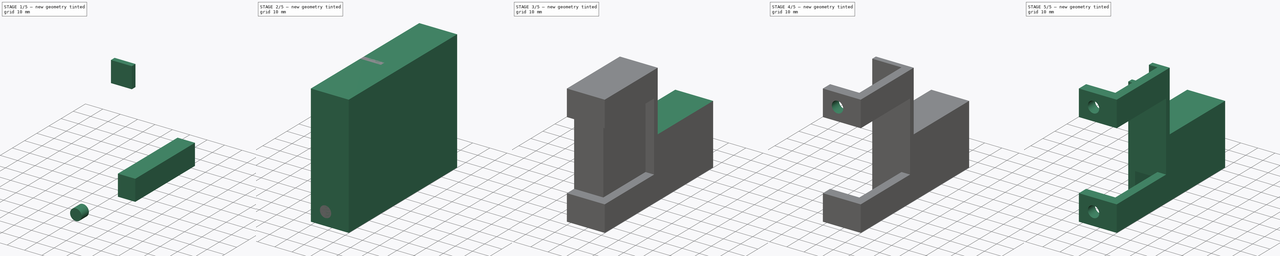
[diagram: build sequence overview — one tinted view per stage of 5, left to right]
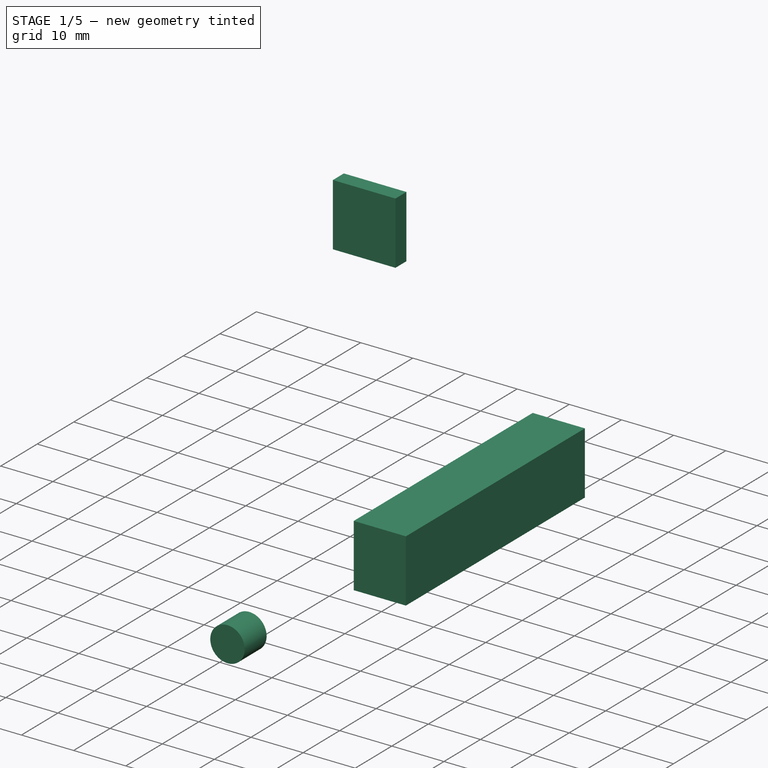
[diagram: stage 1 of 5 — iso view after this stage's code; geometry added in this stage tinted green]
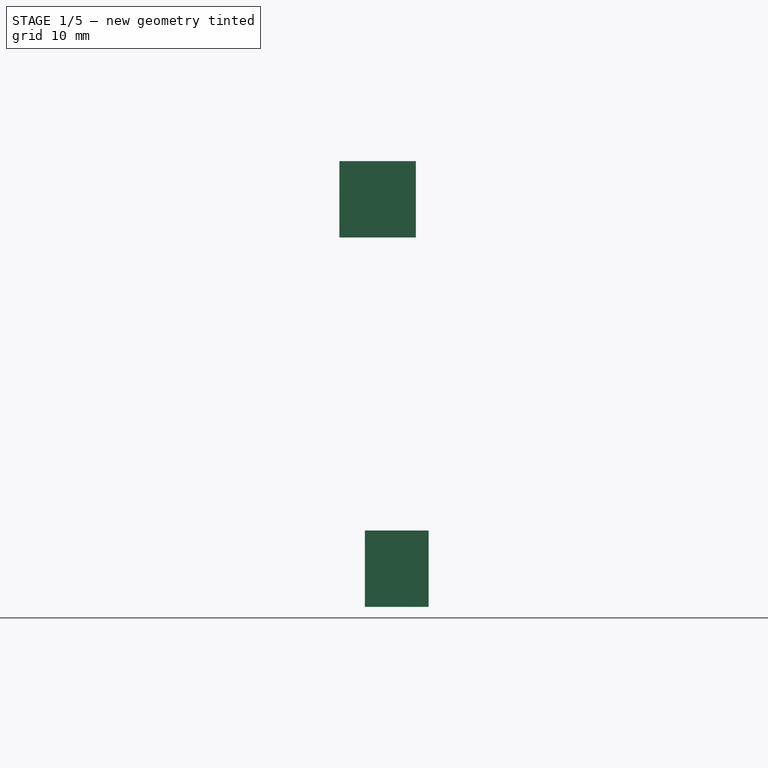
[diagram: stage 1 of 5 — front view after this stage's code; geometry added in this stage tinted green]
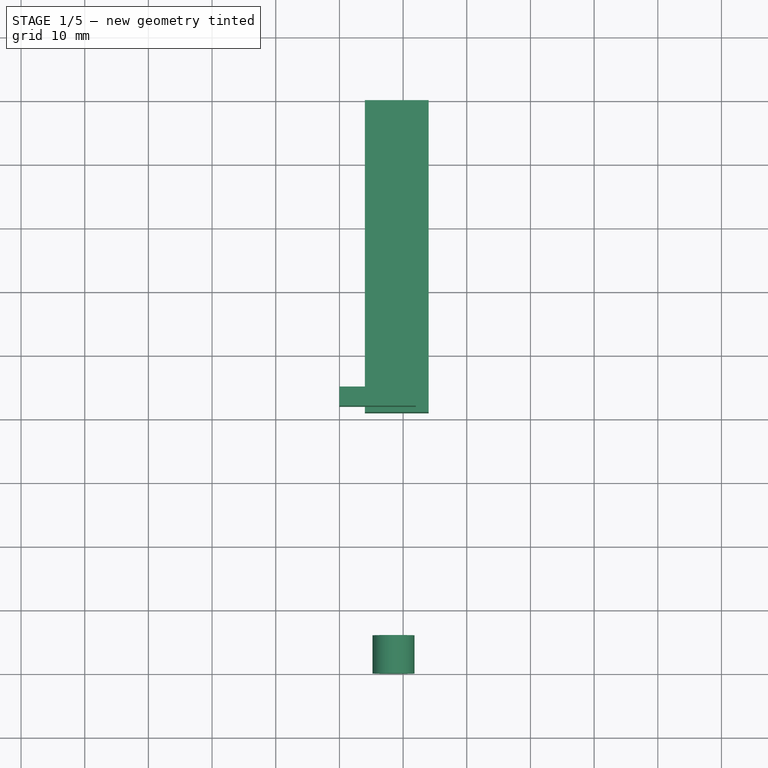
[diagram: stage 1 of 5 — top view after this stage's code; geometry added in this stage tinted green]
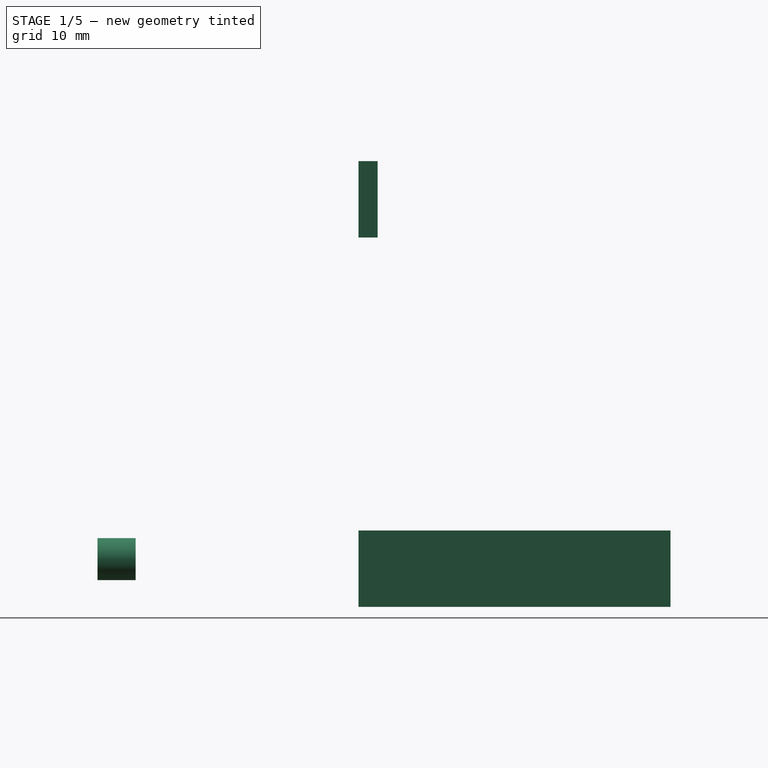
[diagram: stage 1 of 5 — right view after this stage's code; geometry added in this stage tinted green]
FCSTD DOCUMENT  (FreeCAD 0.17R13541 (Git))
Label: LimitSwitchHolder_x-plus
License: All rights reserved
LicenseURL: http://en.wikipedia.org/wiki/All_rights_reserved
objects: Sketcher::SketchObject×9, PartDesign::Pad×9, PartDesign::Body×9, PartDesign::Boolean×8, PartDesign::ShapeBinder×6
note: 50 computed .brp shape members not serialized (recipe doc carries the construction recipe); baked Part::Feature solids carry a one-line shape summary decoded from their .brp

FEATURE [PartDesign::Body] Body006
  Group = -> [Sketch007,Pad005]
  Origin = -> Origin006
  Tip = -> Pad005
FEATURE [Sketcher::SketchObject] Sketch008
  MapMode = 5
  Placement = pos=(0,0,0) rot=(-0.57735,-0.57735,0.57735;4.18879rad)
  sketch-geometry (1):
    g0: Circle CenterX=-7.5 CenterY=8.5 CenterZ=0 NormalX=0 NormalY=0 NormalZ=1 AngleXU=0 Radius=3.3
  constraints (3):
    c: DistanceY(g-1,g0) = 8.5
    c: DistanceX(g0,g-1) = 7.5
    c: Radius(g0) = 3.3
FEATURE [PartDesign::Pad] Pad006
  Length = 6
  Length2 = 100
  Placement = pos=(0,0,0) rot=(-0.57735,-0.57735,0.57735;4.18879rad)
  Profile = -> Sketch008
  Reversed = true
  Type = 0
FEATURE [PartDesign::ShapeBinder] CopyBoolean005
FEATURE [Sketcher::SketchObject] Sketch009
  MapMode = 5
  Placement = pos=(0,41,0) rot=(1,0,0;1.5708rad)
  Support = -> [CopyBoolean005]
  sketch-geometry (4):
    g0: LineSegment StartX=0 StartY=70 StartZ=0 EndX=12 EndY=70 EndZ=0
    g1: LineSegment StartX=12 StartY=70 StartZ=0 EndX=12 EndY=58 EndZ=0
    g2: LineSegment StartX=12 StartY=58 StartZ=0 EndX=0 EndY=58 EndZ=0
    g3: LineSegment StartX=0 StartY=58 StartZ=0 EndX=0 EndY=70 EndZ=0
  constraints (12):
    c: Coincident(g0,g1)
    c: Coincident(g1,g2)
    c: Coincident(g2,g3)
    c: Coincident(g3,g0)
    c: Horizontal(g0)
    c: Horizontal(g2)
    c: Vertical(g1)
    c: Vertical(g3)
    c: PointOnObject(g0,g-2)
    c: DistanceX(g2,g2) = 12
    c: DistanceY(g1,g1) = 12
    c: DistanceY(g-1,g0) = 70
FEATURE [PartDesign::Pad] Pad007
  Length = 3
  Length2 = 100
  Profile = -> Sketch009
  Reversed = true
  Type = 0
FEATURE [PartDesign::ShapeBinder] CopyBoolean006
FEATURE [Sketcher::SketchObject] Sketch010
  MapMode = 5
  Placement = pos=(0,0,0) rot=(1,0,0;3.14159rad)
  Support = -> [CopyBoolean006]
  sketch-geometry (4):
    g0: LineSegment StartX=4 StartY=-41 StartZ=0 EndX=14 EndY=-41 EndZ=0
    g1: LineSegment StartX=14 StartY=-41 StartZ=0 EndX=14 EndY=-90 EndZ=0
    g2: LineSegment StartX=14 StartY=-90 StartZ=0 EndX=4 EndY=-90 EndZ=0
    g3: LineSegment StartX=4 StartY=-90 StartZ=0 EndX=4 EndY=-41 EndZ=0
  constraints (12):
    c: Coincident(g0,g1)
    c: Coincident(g1,g2)
    c: Coincident(g2,g3)
    c: Coincident(g3,g0)
    c: Horizontal(g0)
    c: Horizontal(g2)
    c: Vertical(g1)
    c: Vertical(g3)
    c: DistanceX(g0,g0) = 10
    c: DistanceY(g3,g3) = 49
    c: DistanceY(g0,g-1) = 41
    c: DistanceX(g-1,g0) = 4
FEATURE [PartDesign::Pad] Pad008
  Length = 12
  Length2 = 100
  Profile = -> Sketch010
  Reversed = true
  Type = 0
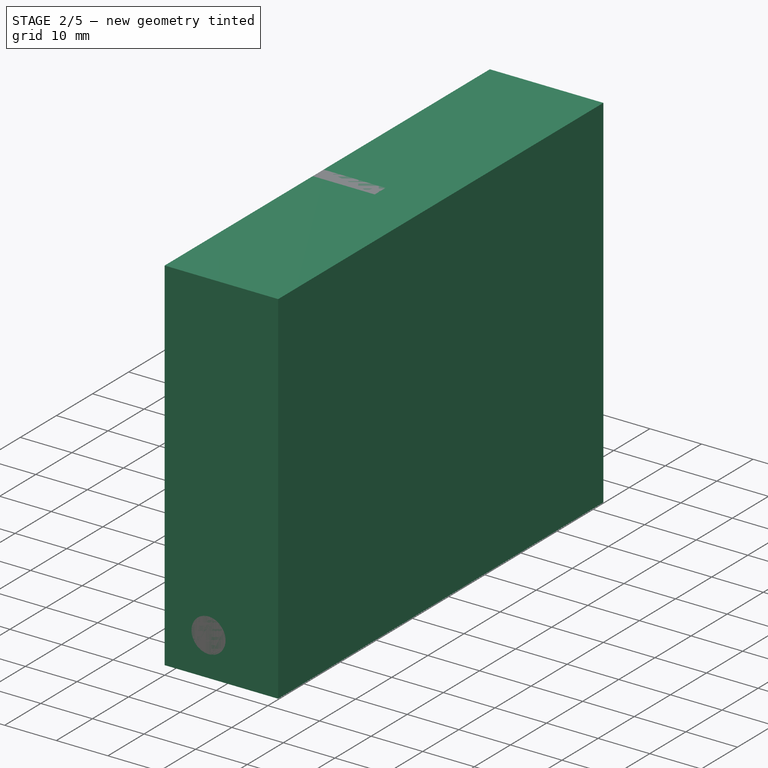
[diagram: stage 2 of 5 — iso view after this stage's code; geometry added in this stage tinted green]
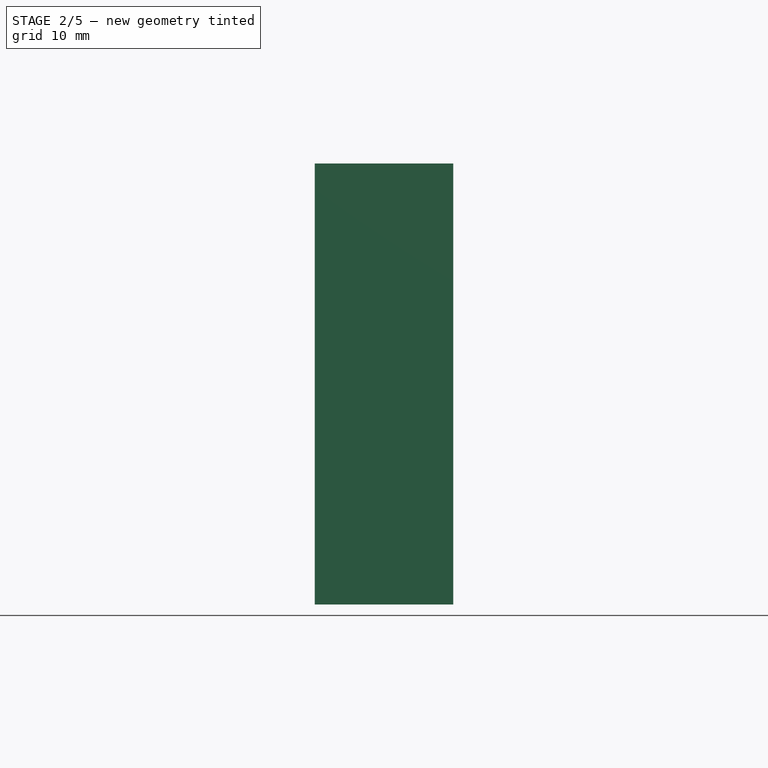
[diagram: stage 2 of 5 — front view after this stage's code; geometry added in this stage tinted green]
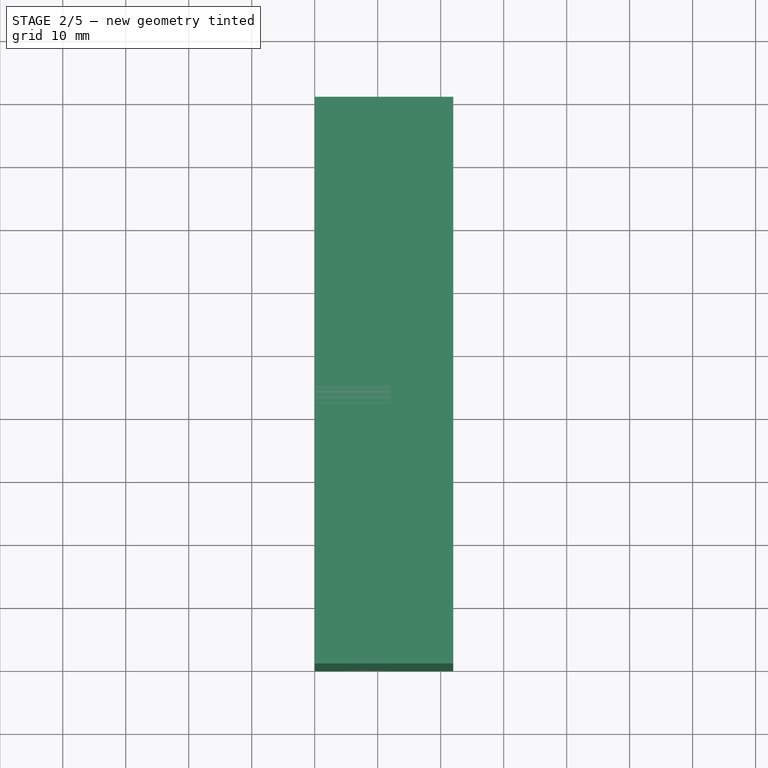
[diagram: stage 2 of 5 — top view after this stage's code; geometry added in this stage tinted green]
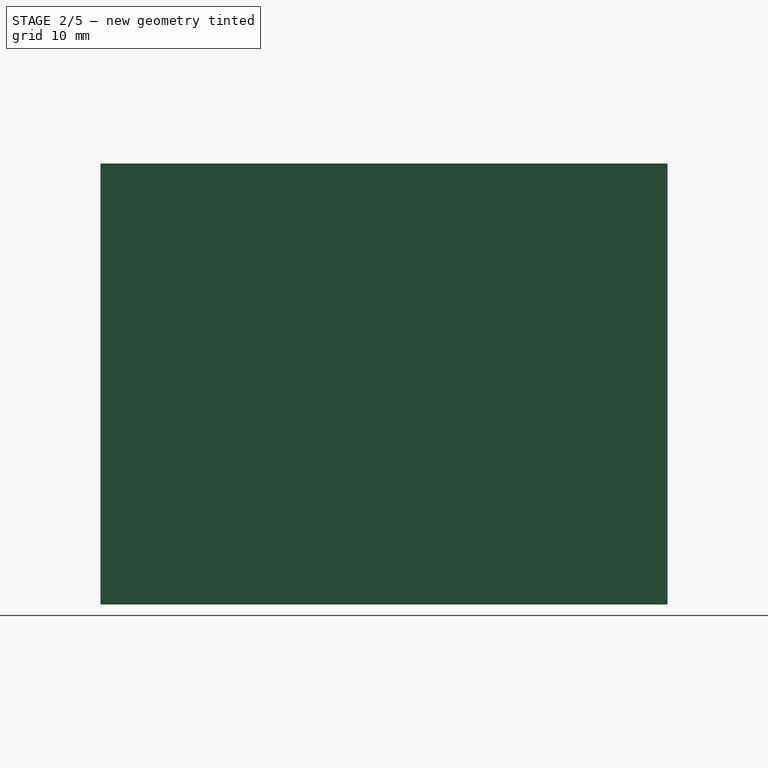
[diagram: stage 2 of 5 — right view after this stage's code; geometry added in this stage tinted green]
FEATURE [Sketcher::SketchObject] Sketch
  MapMode = 5
  Placement = pos=(0,0,0) rot=(0.57735,0.57735,0.57735;2.0944rad)
  Support = -> [YZ_Plane]
  sketch-geometry (4):
    g0: LineSegment StartX=90 StartY=70 StartZ=0 EndX=0 EndY=70 EndZ=0
    g1: LineSegment StartX=0 StartY=70 StartZ=0 EndX=0 EndY=0 EndZ=0
    g2: LineSegment StartX=0 StartY=0 StartZ=0 EndX=90 EndY=0 EndZ=0
    g3: LineSegment StartX=90 StartY=0 StartZ=0 EndX=90 EndY=70 EndZ=0
  constraints (12):
    c: Coincident(g0,g1)
    c: Coincident(g1,g2)
    c: Coincident(g2,g3)
    c: Coincident(g3,g0)
    c: Horizontal(g0)
    c: Horizontal(g2)
    c: Vertical(g1)
    c: Vertical(g3)
    c: DistanceX(g0,g0) = 90
    c: DistanceY(g3,g3) = 70
    c: DistanceY(g1,g-1) = 0
    c: DistanceX(g-1,g1) = 0
FEATURE [PartDesign::Pad] Pad
  Length = 22
  Length2 = 100
  Placement = pos=(0,0,0) rot=(0.57735,0.57735,0.57735;2.0944rad)
  Profile = -> Sketch
  Type = 0
FEATURE [PartDesign::ShapeBinder] CopyPad
  Placement = pos=(22,0,0) rot=(0,0,1;0rad)
FEATURE [Sketcher::SketchObject] Sketch001
  MapMode = 5
  Placement = pos=(22,0,0) rot=(0.57735,0.57735,0.57735;2.0944rad)
  Support = -> [CopyPad]
  sketch-geometry (4):
    g0: LineSegment StartX=0 StartY=55 StartZ=0 EndX=41 EndY=55 EndZ=0
    g1: LineSegment StartX=41 StartY=55 StartZ=0 EndX=41 EndY=15 EndZ=0
    g2: LineSegment StartX=41 StartY=15 StartZ=0 EndX=0 EndY=15 EndZ=0
    g3: LineSegment StartX=0 StartY=15 StartZ=0 EndX=0 EndY=55 EndZ=0
  constraints (12):
    c: Coincident(g0,g1)
    c: Coincident(g1,g2)
    c: Coincident(g2,g3)
    c: Coincident(g3,g0)
    c: Horizontal(g0)
    c: Horizontal(g2)
    c: Vertical(g1)
    c: Vertical(g3)
    c: PointOnObject(g0,g-2)
    c: DistanceY(g-1,g2) = 15
    c: DistanceY(g3,g3) = 40
    c: DistanceX(g0,g0) = 41
FEATURE [PartDesign::Pad] Pad001
  Length = 22
  Length2 = 100
  Placement = pos=(22,0,0) rot=(0,0,1;0rad)
  Profile = -> Sketch001
  Reversed = true
  Type = 0
FEATURE [PartDesign::ShapeBinder] CopyBoolean001
  Placement = pos=(0,0,0) rot=(0.57735,0.57735,0.57735;2.0944rad)
FEATURE [Sketcher::SketchObject] Sketch003
  MapMode = 5
  Placement = pos=(0,0,0) rot=(0.707107,0.707107,0;3.14159rad)
  Support = -> [CopyBoolean001]
  sketch-geometry (4):
    g0: LineSegment StartX=6 StartY=17 StartZ=0 EndX=41 EndY=17 EndZ=0
    g1: LineSegment StartX=41 StartY=17 StartZ=0 EndX=41 EndY=0 EndZ=0
    g2: LineSegment StartX=41 StartY=0 StartZ=0 EndX=6 EndY=0 EndZ=0
    g3: LineSegment StartX=6 StartY=0 StartZ=0 EndX=6 EndY=17 EndZ=0
  constraints (12):
    c: Coincident(g0,g1)
    c: Coincident(g1,g2)
    c: Coincident(g2,g3)
    c: Coincident(g3,g0)
    c: Horizontal(g0)
    c: Horizontal(g2)
    c: Vertical(g1)
    c: Vertical(g3)
    c: DistanceY(g-1,g2) = 0
    c: DistanceX(g-1,g2) = 6
    c: DistanceY(g3,g3) = 17
    c: DistanceX(g0,g0) = 35
FEATURE [PartDesign::Pad] Pad003
  Length = 70
  Length2 = 100
  Placement = pos=(0,0,0) rot=(0.57735,0.57735,0.57735;2.0944rad)
  Profile = -> Sketch003
  Reversed = true
  Type = 0
FEATURE [PartDesign::ShapeBinder] CopyBoolean002
FEATURE [Sketcher::SketchObject] Sketch004
  MapMode = 5
  Placement = pos=(0,0,0) rot=(-0.57735,0.57735,0.57735;4.18879rad)
  Support = -> [CopyBoolean002]
  sketch-geometry (4):
    g0: LineSegment StartX=-87 StartY=32 StartZ=0 EndX=-44 EndY=32 EndZ=0
    g1: LineSegment StartX=-44 StartY=32 StartZ=0 EndX=-44 EndY=3 EndZ=0
    g2: LineSegment StartX=-44 StartY=3 StartZ=0 EndX=-87 EndY=3 EndZ=0
    g3: LineSegment StartX=-87 StartY=3 StartZ=0 EndX=-87 EndY=32 EndZ=0
  constraints (12):
    c: Coincident(g0,g1)
    c: Coincident(g1,g2)
    c: Coincident(g2,g3)
    c: Coincident(g3,g0)
    c: Horizontal(g0)
    c: Horizontal(g2)
    c: Vertical(g1)
    c: Vertical(g3)
    c: DistanceY(g-1,g1) = 3
    c: DistanceY(g1,g1) = 29
    c: DistanceX(g0,g0) = 43
    c: DistanceX(g1,g-1) = 44
FEATURE [PartDesign::Pad] Pad004
  Length = 2
  Length2 = 100
  Profile = -> Sketch004
  Reversed = true
  Type = 0
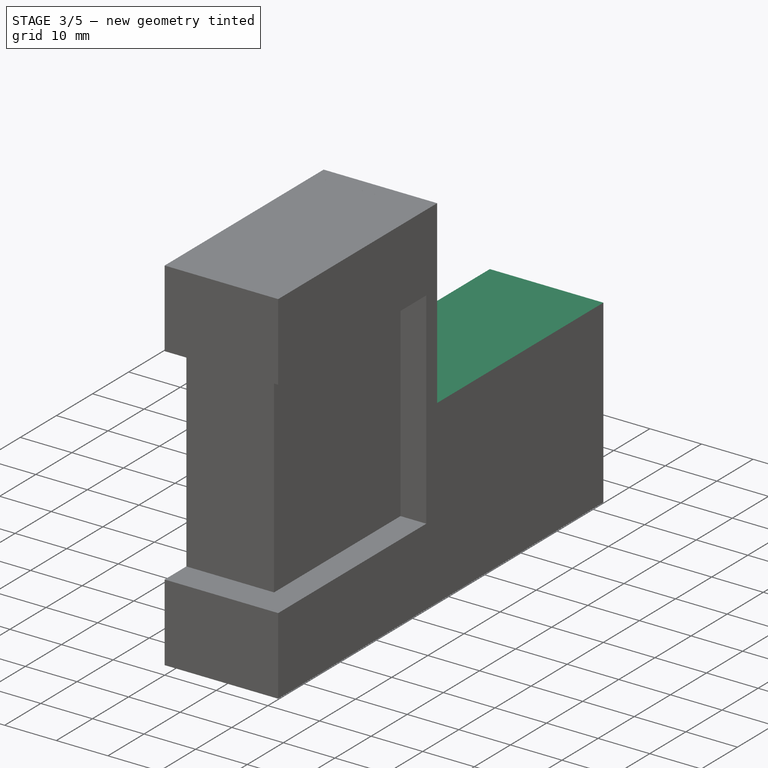
[diagram: stage 3 of 5 — iso view after this stage's code; geometry added in this stage tinted green]
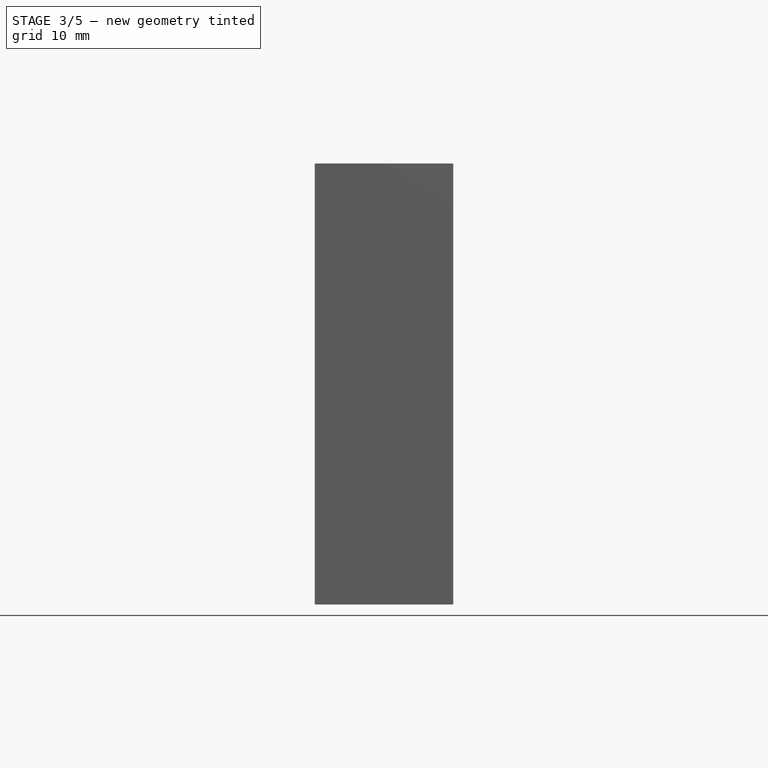
[diagram: stage 3 of 5 — front view after this stage's code; geometry added in this stage tinted green]
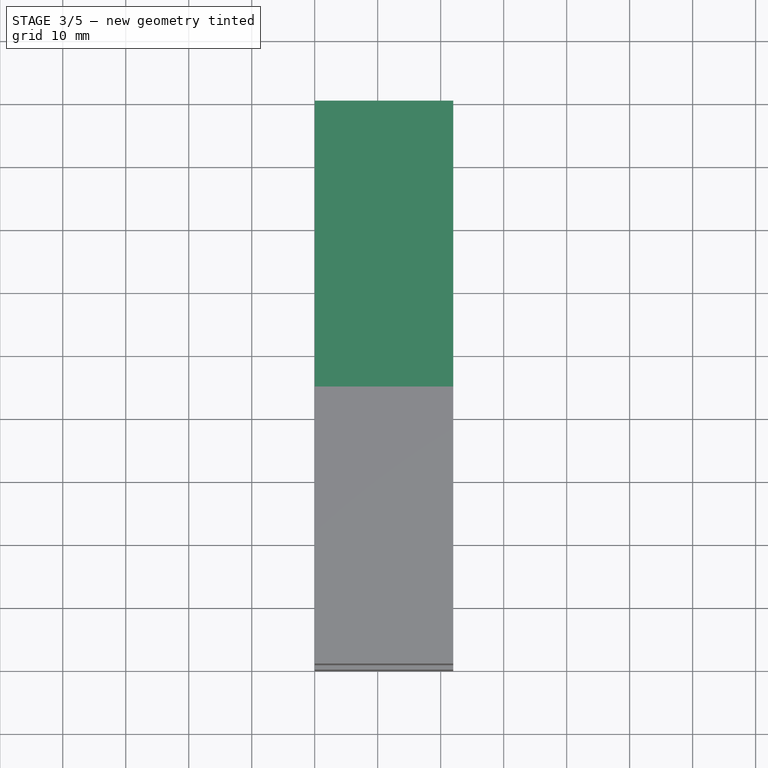
[diagram: stage 3 of 5 — top view after this stage's code; geometry added in this stage tinted green]
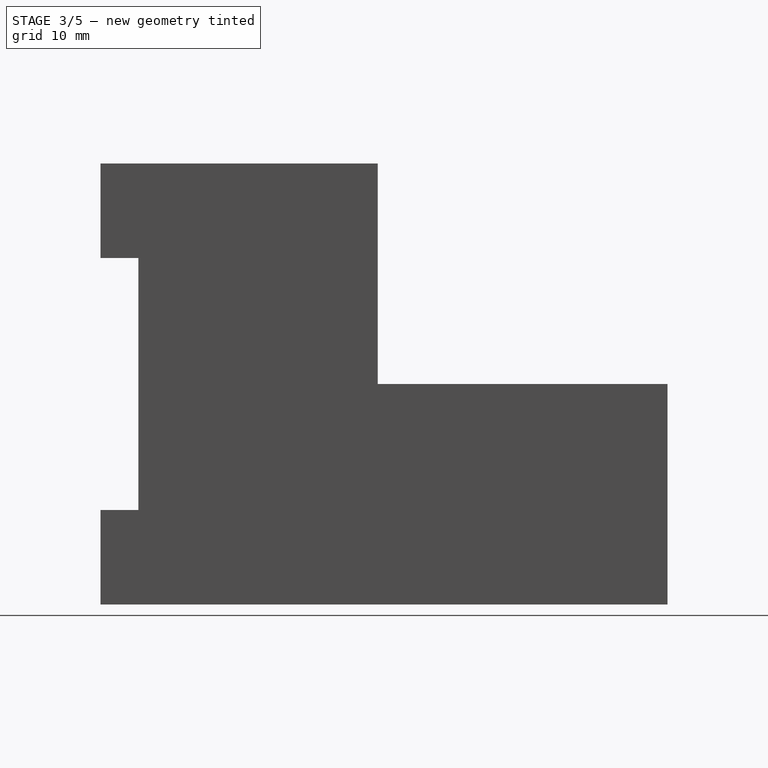
[diagram: stage 3 of 5 — right view after this stage's code; geometry added in this stage tinted green]
FEATURE [PartDesign::Body] Body001
  Group = -> [CopyPad,Sketch001,Pad001]
  Origin = -> Origin001
  Tip = -> Pad001
FEATURE [PartDesign::ShapeBinder] CopyPad001
  Placement = pos=(22,0,0) rot=(0,0,1;0rad)
FEATURE [Sketcher::SketchObject] Sketch002
  MapMode = 5
  Placement = pos=(22,0,0) rot=(0.57735,0.57735,0.57735;2.0944rad)
  Support = -> [CopyPad001]
  sketch-geometry (4):
    g0: LineSegment StartX=44 StartY=70 StartZ=0 EndX=90 EndY=70 EndZ=0
    g1: LineSegment StartX=90 StartY=70 StartZ=0 EndX=90 EndY=35 EndZ=0
    g2: LineSegment StartX=90 StartY=35 StartZ=0 EndX=44 EndY=35 EndZ=0
    g3: LineSegment StartX=44 StartY=35 StartZ=0 EndX=44 EndY=70 EndZ=0
  constraints (12):
    c: Coincident(g0,g1)
    c: Coincident(g1,g2)
    c: Coincident(g2,g3)
    c: Coincident(g3,g0)
    c: Horizontal(g0)
    c: Horizontal(g2)
    c: Vertical(g1)
    c: Vertical(g3)
    c: DistanceX(g-1,g2) = 44
    c: DistanceX(g0,g0) = 46
    c: DistanceY(g1,g1) = 35
    c: DistanceY(g-1,g2) = 35
FEATURE [PartDesign::Pad] Pad002
  Length = 22
  Length2 = 100
  Placement = pos=(22,0,0) rot=(0,0,1;0rad)
  Profile = -> Sketch002
  Reversed = true
  Type = 0
FEATURE [PartDesign::Body] Body002
  Group = -> [CopyPad001,Sketch002,Pad002]
  Origin = -> Origin002
  Tip = -> Pad002
FEATURE [PartDesign::Boolean] Boolean
  BaseFeature = -> Pad
  Group = -> [Body001]
  Type = 1
FEATURE [PartDesign::Boolean] Boolean001
  BaseFeature = -> Boolean
  Group = -> [Body002]
  Type = 1
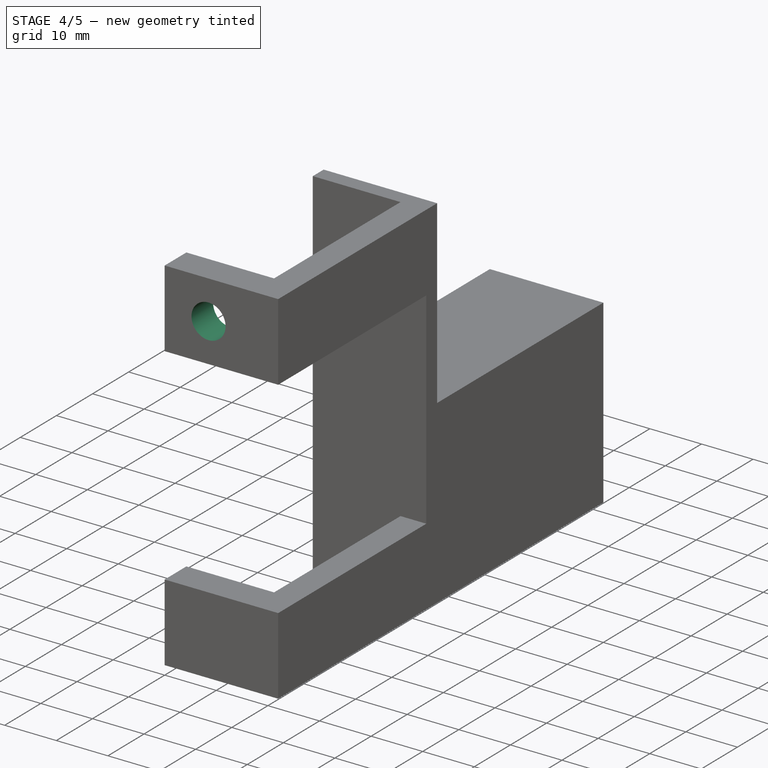
[diagram: stage 4 of 5 — iso view after this stage's code; geometry added in this stage tinted green]
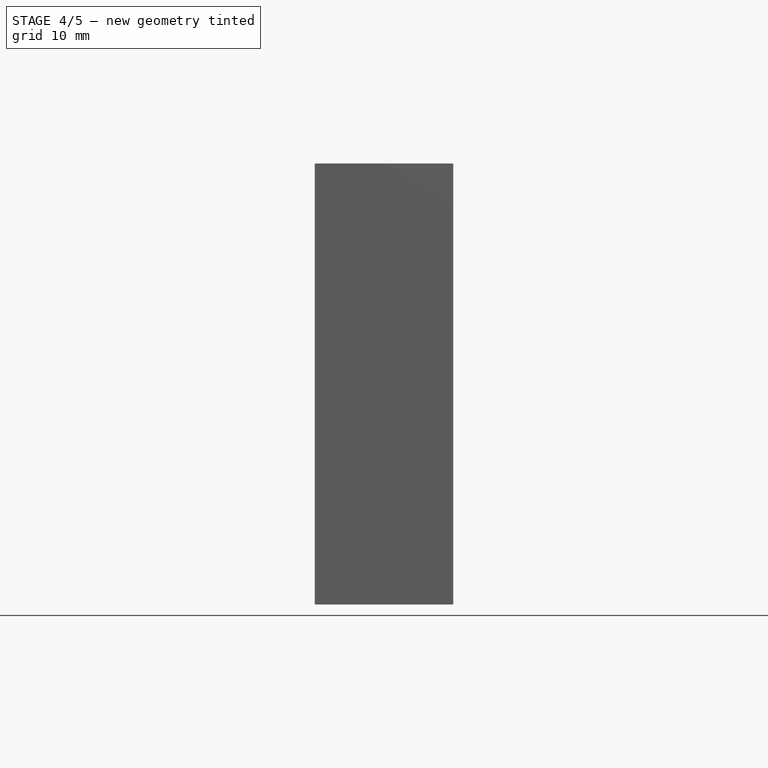
[diagram: stage 4 of 5 — front view after this stage's code; geometry added in this stage tinted green]
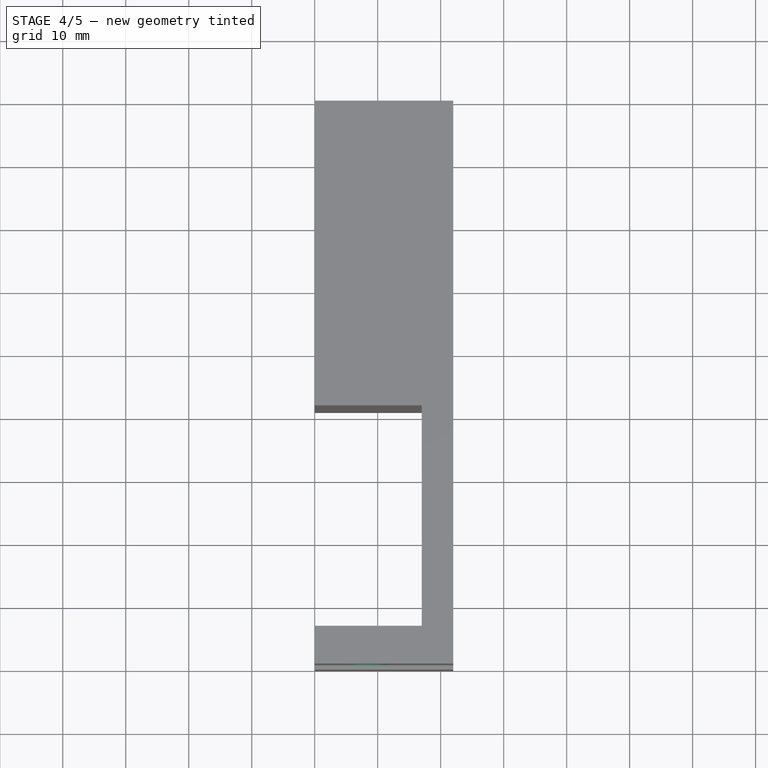
[diagram: stage 4 of 5 — top view after this stage's code; geometry added in this stage tinted green]
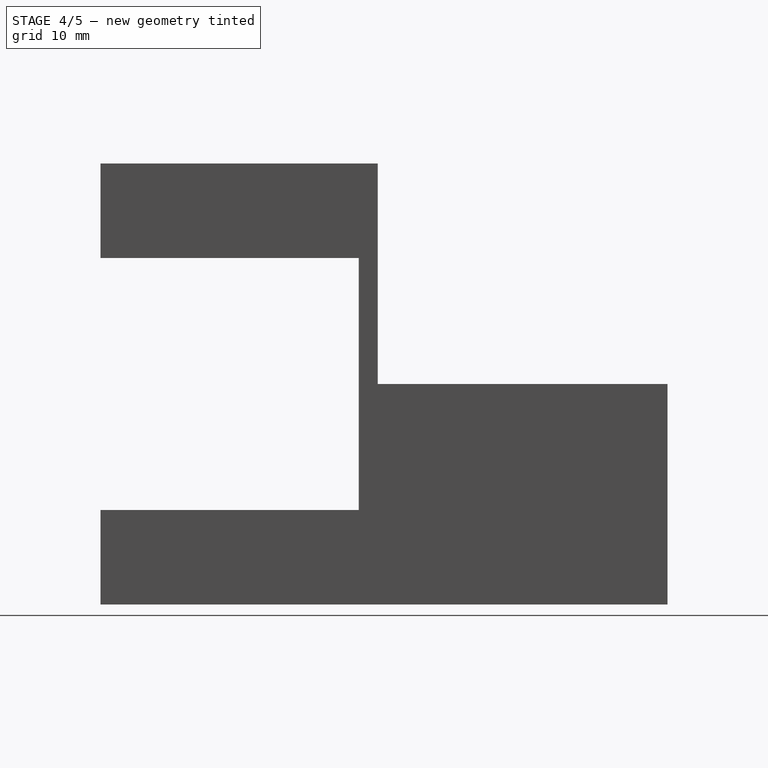
[diagram: stage 4 of 5 — right view after this stage's code; geometry added in this stage tinted green]
FEATURE [PartDesign::Body] Body003
  Group = -> [CopyBoolean001,Sketch003,Pad003]
  Origin = -> Origin003
  Tip = -> Pad003
FEATURE [PartDesign::Boolean] Boolean002
  BaseFeature = -> Boolean001
  Group = -> [Body003]
  Type = 1
FEATURE [PartDesign::Body] Body004
  Group = -> [CopyBoolean002,Sketch004,Pad004]
  Origin = -> Origin004
  Tip = -> Pad004
FEATURE [PartDesign::Boolean] Boolean003
  BaseFeature = -> Boolean002
  Group = -> [Body004]
  Type = 1
FEATURE [Sketcher::SketchObject] Sketch007
  MapMode = 5
  Placement = pos=(0,0,0) rot=(-0.57735,-0.57735,0.57735;4.18879rad)
  sketch-geometry (1):
    g0: Circle CenterX=-7.5 CenterY=8.5 CenterZ=0 NormalX=0 NormalY=0 NormalZ=1 AngleXU=0 Radius=3.3
  constraints (3):
    c: DistanceY(g-1,g0) = 8.5
    c: DistanceX(g0,g-1) = 7.5
    c: Radius(g0) = 3.3
FEATURE [PartDesign::Pad] Pad005
  Length = 6
  Length2 = 100
  Placement = pos=(0,0,0) rot=(-0.57735,-0.57735,0.57735;4.18879rad)
  Profile = -> Sketch007
  Reversed = true
  Type = 0
FEATURE [PartDesign::Body] Body007
  Group = -> [Sketch008,Pad006]
  Origin = -> Origin007
  Placement = pos=(0,0,55) rot=(0,0,1;0rad)
  Tip = -> Pad006
FEATURE [PartDesign::Boolean] Boolean004
  BaseFeature = -> Boolean003
  Group = -> [Body007]
  Type = 1
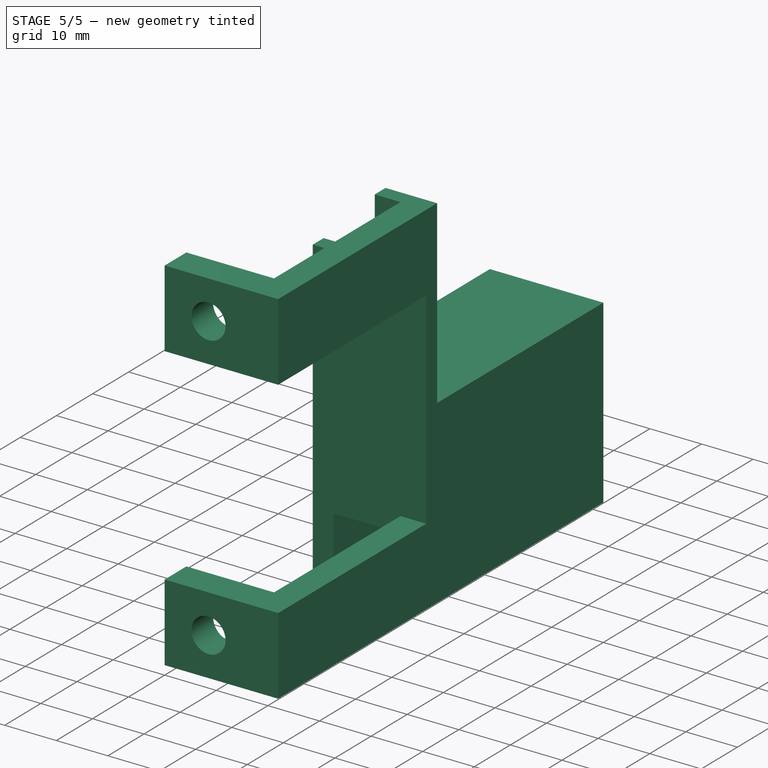
[diagram: stage 5 of 5 — iso view after this stage's code; geometry added in this stage tinted green]
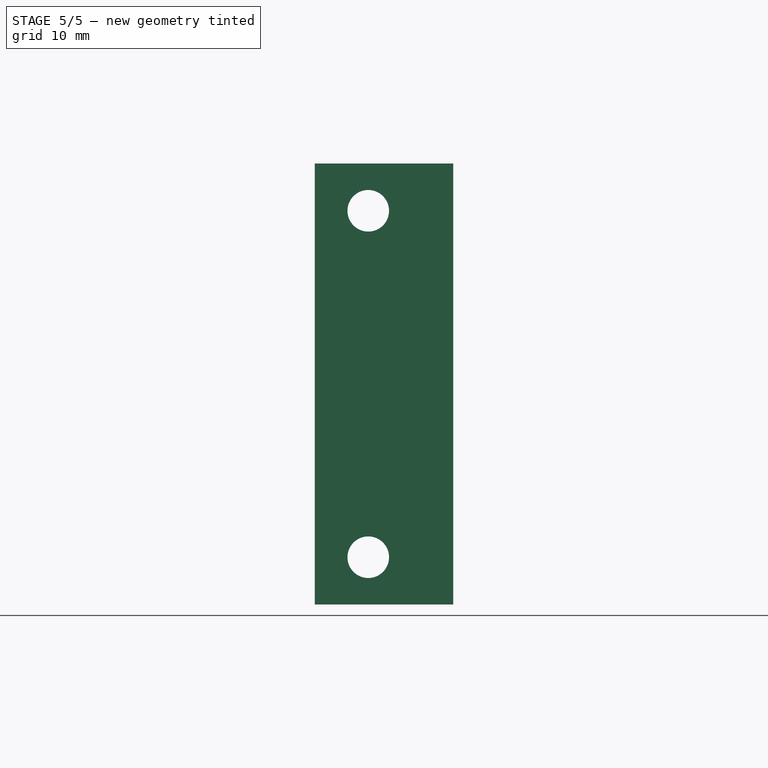
[diagram: stage 5 of 5 — front view after this stage's code; geometry added in this stage tinted green]
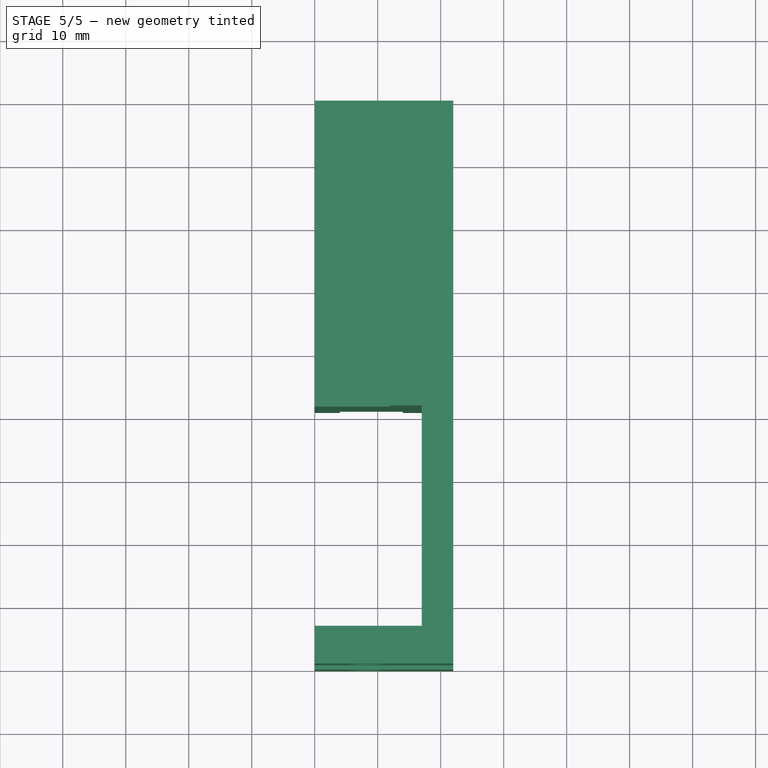
[diagram: stage 5 of 5 — top view after this stage's code; geometry added in this stage tinted green]
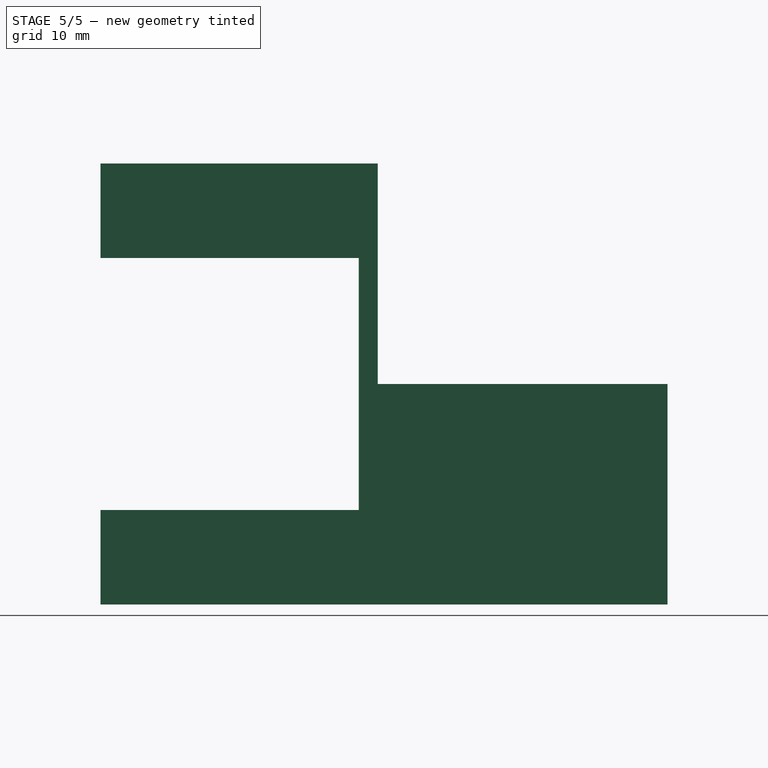
[diagram: stage 5 of 5 — right view after this stage's code; geometry added in this stage tinted green]
FEATURE [PartDesign::Boolean] Boolean005
  BaseFeature = -> Boolean004
  Group = -> [Body006]
  Type = 1
FEATURE [PartDesign::Body] Body008
  Group = -> [CopyBoolean005,Sketch009,Pad007]
  Origin = -> Origin008
  Tip = -> Pad007
FEATURE [PartDesign::Boolean] Boolean006
  BaseFeature = -> Boolean005
  Group = -> [Body008]
  Type = 1
FEATURE [PartDesign::Body] Body009
  Group = -> [CopyBoolean006,Sketch010,Pad008]
  Origin = -> Origin009
  Tip = -> Pad008
FEATURE [PartDesign::Boolean] Boolean007
  BaseFeature = -> Boolean006
  Group = -> [Body009]
  Type = 1
FEATURE [PartDesign::Body] Body
  Group = -> [Sketch,Pad,Boolean,Boolean001,Boolean002,Boolean003,Boolean004,Boolean005,Boolean006,Boolean007]
  Origin = -> Origin
  Tip = -> Boolean007
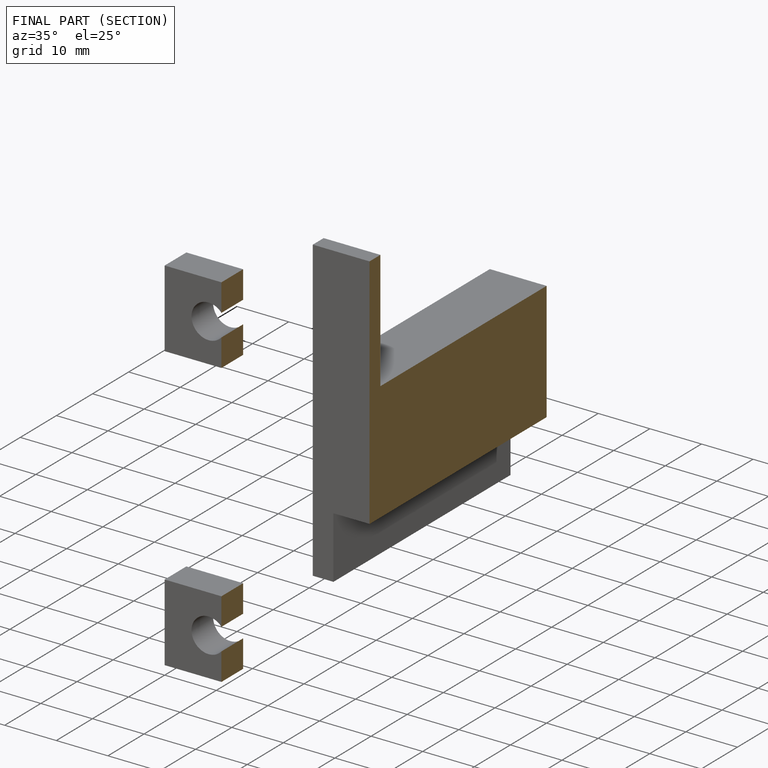
[diagram: finished part — half-section view (interior)]
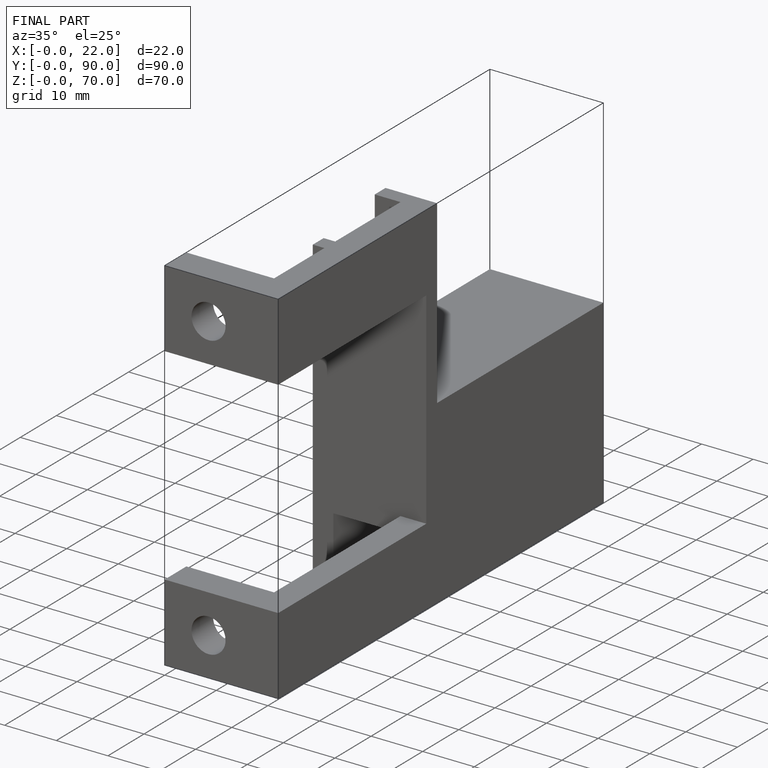
[diagram: finished part — iso view with bounding-box wireframe]
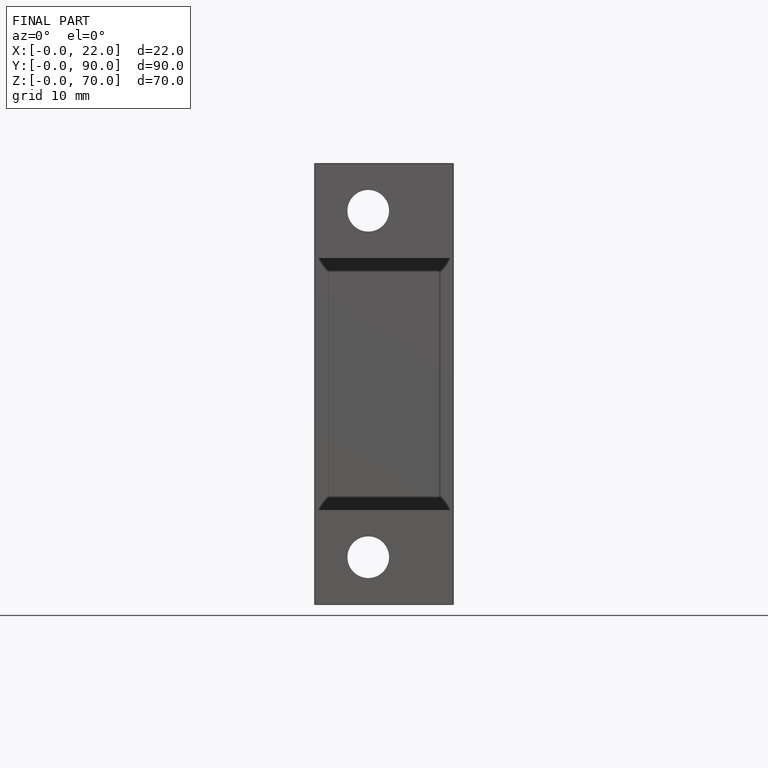
[diagram: finished part — front view with bounding-box wireframe]
